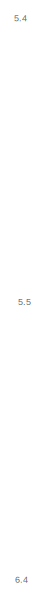
[diagram: root canvas - part 1/7, top center region]
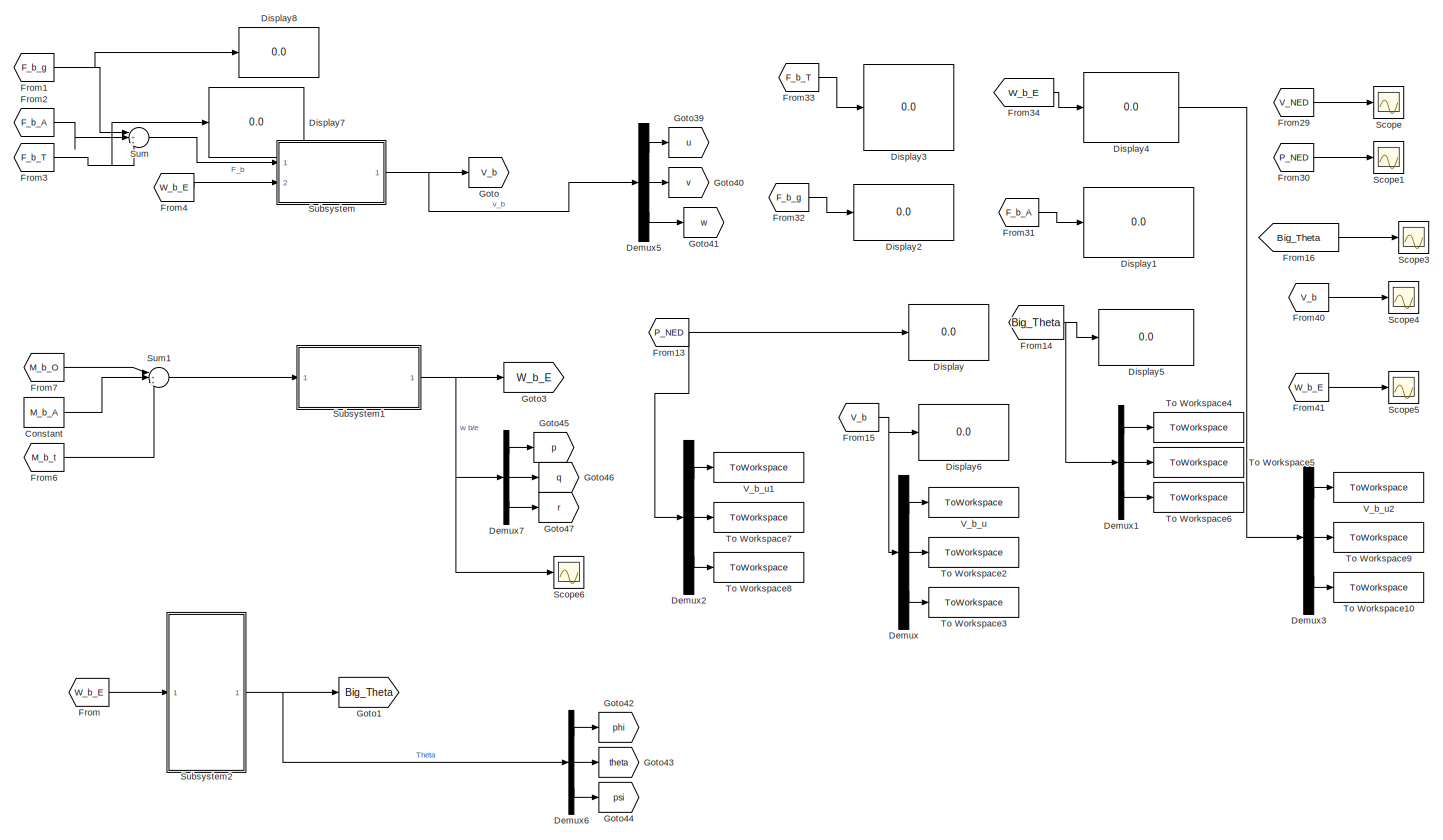
[diagram: root canvas - part 2/7, top right region]
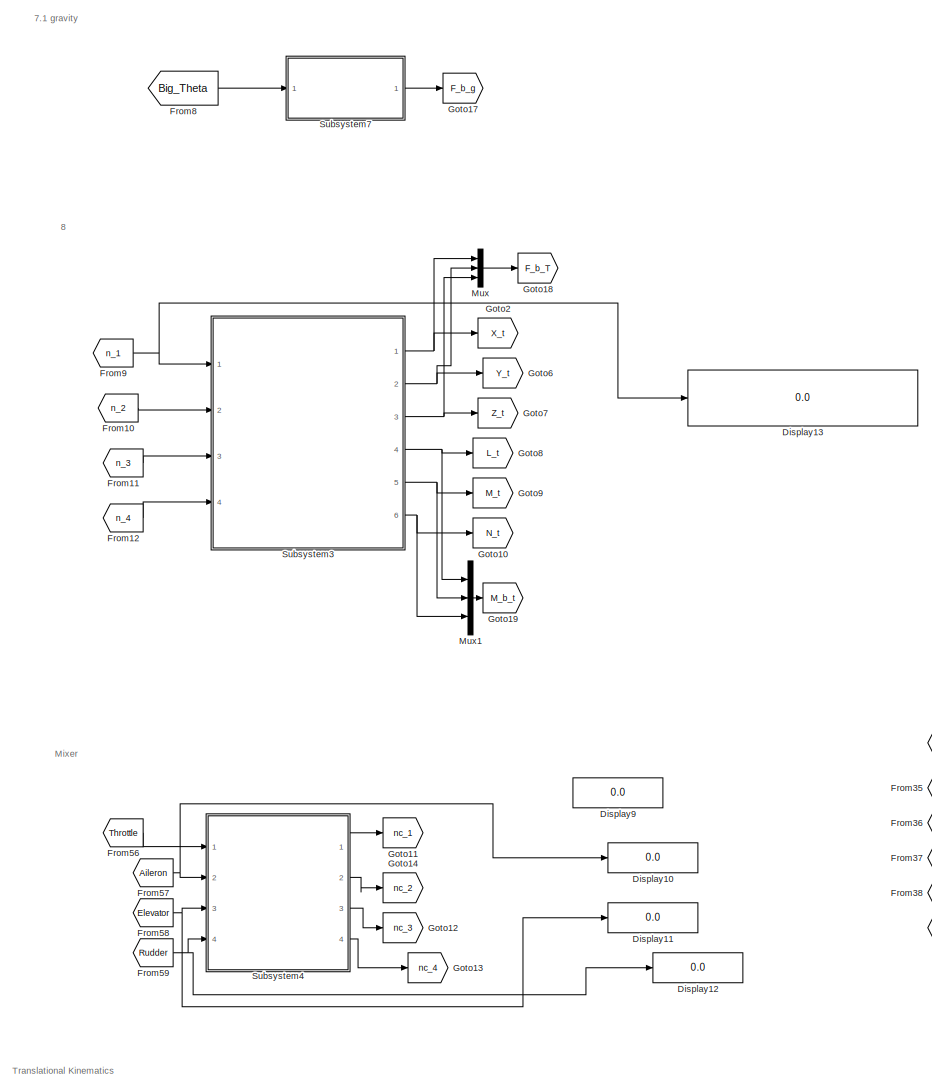
[diagram: root canvas - part 3/7, central region]
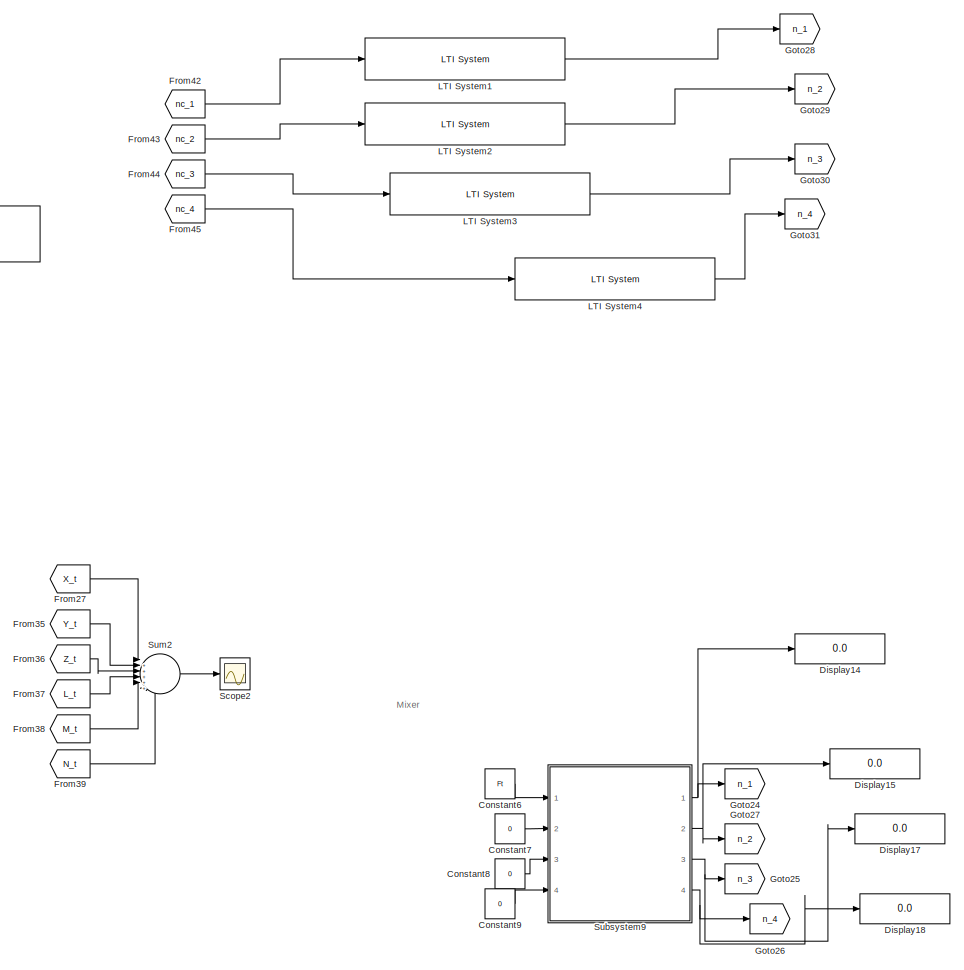
[diagram: root canvas - part 4/7, middle right region]
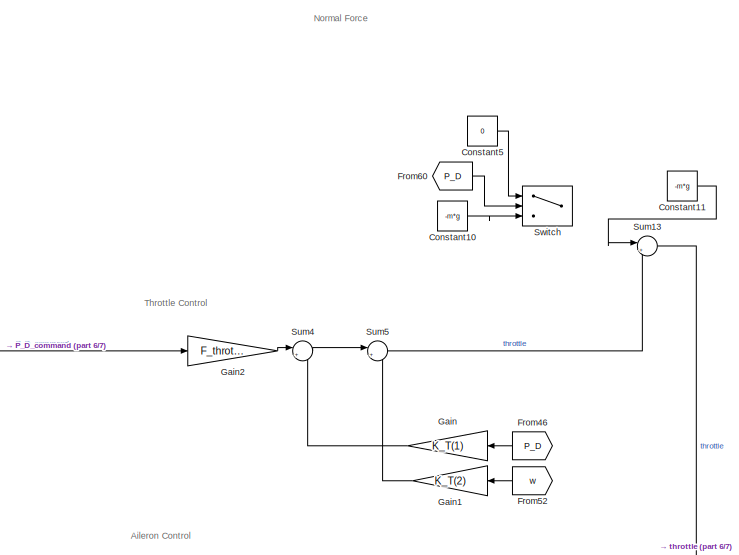
[diagram: root canvas - part 5/7, middle left region]
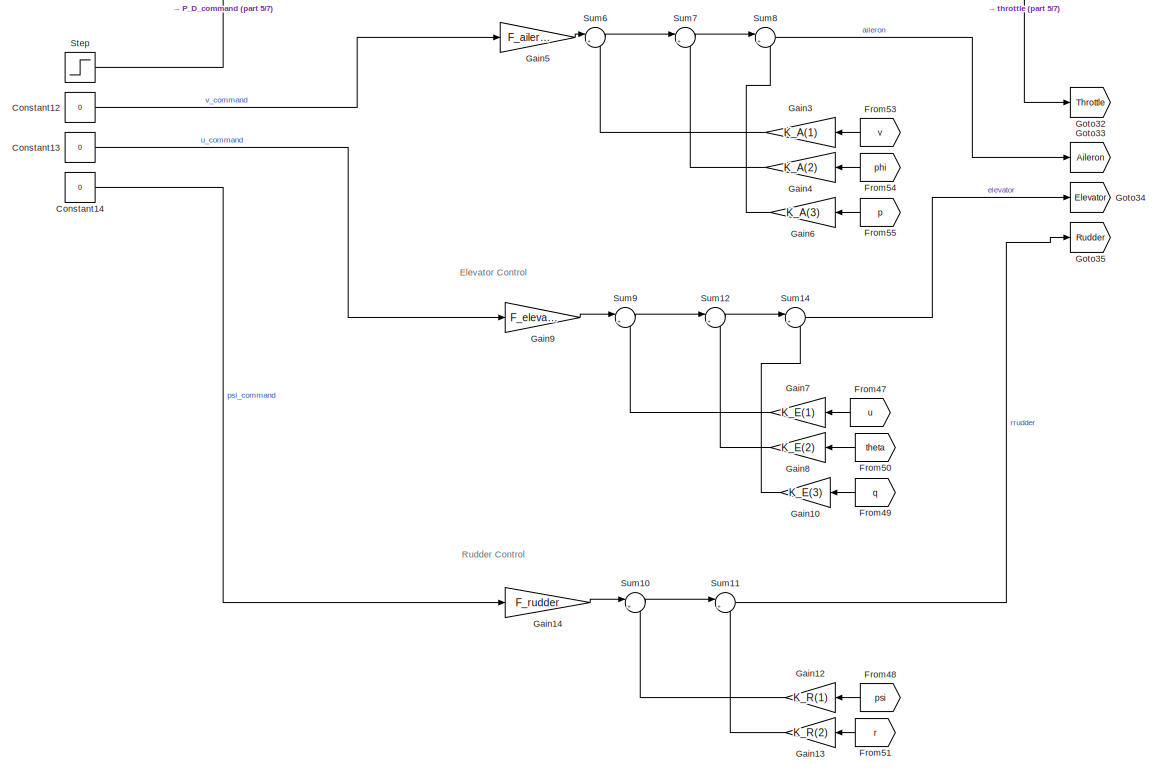
[diagram: root canvas - part 6/7, bottom left region]
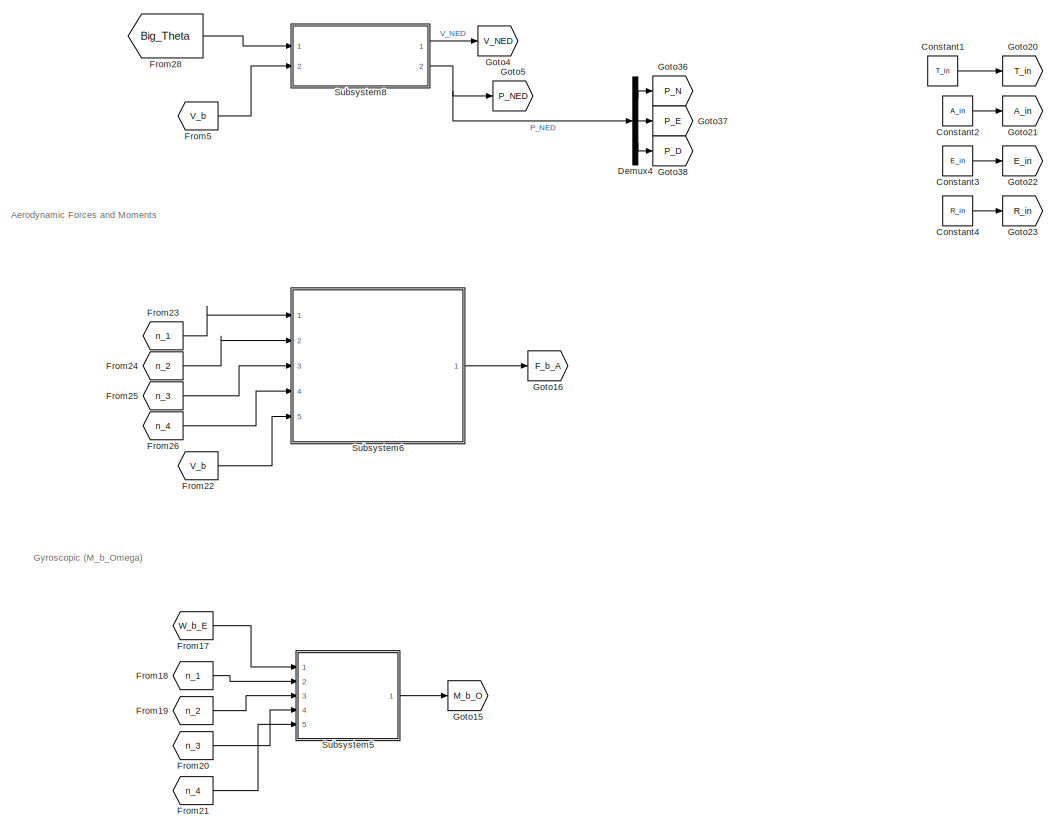
[diagram: root canvas - part 7/7, bottom center region]
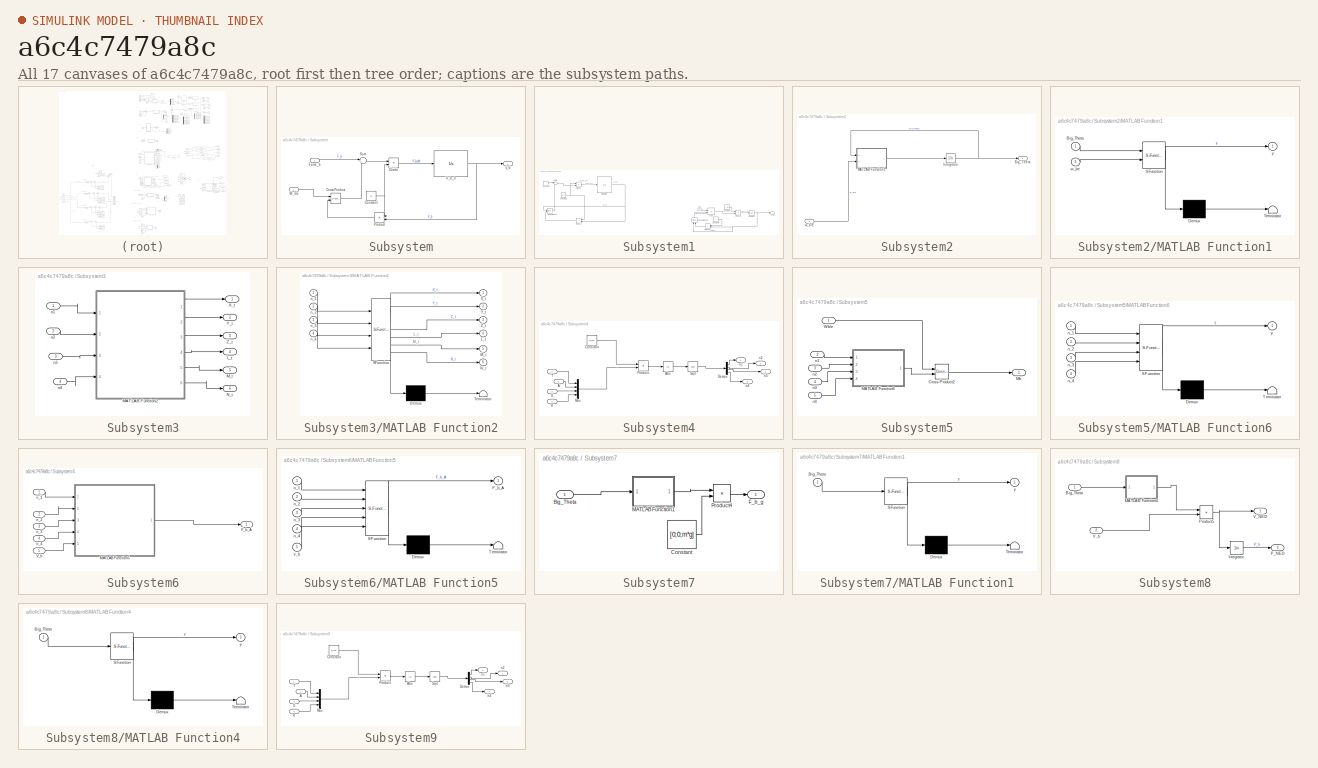
[diagram: thumbnail index - all 17 canvases of the model, root first then tree order]
MODEL slx_a6c4c7479a8c
KIND model
CONFIG AbsTol = auto
CONFIG EnableMultiTasking = off
CONFIG FixedStep = auto
CONFIG MaxStep = auto
CONFIG MinStep = auto
CONFIG RelTol = 1e-3
CONFIG SampleTimeConstraint = Unconstrained
CONFIG SolverName = VariableStepAuto
CONFIG StartTime = 0.0
CONFIG StopTime = 10
BLOCK [Constant] Constant
  Value = M_b_A
BLOCK [Constant] Constant1
  Commented = on
  Value = T_in
BLOCK [Constant] Constant10
  Commented = on
  Value = -m*g
BLOCK [Constant] Constant11
  Value = -m*g
BLOCK [Constant] Constant12
  Value = 0
BLOCK [Constant] Constant13
  Value = 0
BLOCK [Constant] Constant14
  Value = 0
BLOCK [Constant] Constant2
  Commented = on
  Value = A_in
BLOCK [Constant] Constant3
  Commented = on
  Value = E_in
BLOCK [Constant] Constant4
  Commented = on
  Value = R_in
BLOCK [Constant] Constant5
  Commented = on
  Value = 0
BLOCK [Constant] Constant6
  Commented = on
  Value = Ft
BLOCK [Constant] Constant7
  Commented = on
  Value = 0
BLOCK [Constant] Constant8
  Commented = on
  Value = 0
BLOCK [Constant] Constant9
  Commented = on
  Value = 0
BLOCK [Demux] Demux
  Commented = on
  Outputs = 3
  Ports = [1, 3]
BLOCK [Demux] Demux1
  Commented = on
  Outputs = 3
  Ports = [1, 3]
BLOCK [Demux] Demux2
  Commented = on
  Outputs = 3
  Ports = [1, 3]
BLOCK [Demux] Demux3
  Commented = on
  Outputs = 3
  Ports = [1, 3]
BLOCK [Demux] Demux4
  Outputs = 3
  Ports = [1, 3]
BLOCK [Demux] Demux5
  Outputs = 3
  Ports = [1, 3]
BLOCK [Demux] Demux6
  Outputs = 3
  Ports = [1, 3]
BLOCK [Demux] Demux7
  Outputs = 3
  Ports = [1, 3]
BLOCK [Display] Display
  Commented = on
  Decimation = 1
  Ports = [1]
BLOCK [Display] Display1
  Commented = on
  Decimation = 1
  Ports = [1]
BLOCK [Display] Display10
  Decimation = 1
  Ports = [1]
BLOCK [Display] Display11
  Decimation = 1
  Ports = [1]
BLOCK [Display] Display12
  Decimation = 1
  Ports = [1]
BLOCK [Display] Display13
  Decimation = 1
  Ports = [1]
BLOCK [Display] Display14
  Commented = on
  Decimation = 1
  Ports = [1]
BLOCK [Display] Display15
  Commented = on
  Decimation = 1
  Ports = [1]
BLOCK [Display] Display17
  Commented = on
  Decimation = 1
  Ports = [1]
BLOCK [Display] Display18
  Commented = on
  Decimation = 1
  Ports = [1]
BLOCK [Display] Display2
  Commented = on
  Decimation = 1
  Ports = [1]
BLOCK [Display] Display3
  Commented = on
  Decimation = 1
  Ports = [1]
BLOCK [Display] Display4
  Commented = on
  Decimation = 1
  Ports = [1]
BLOCK [Display] Display5
  Commented = on
  Decimation = 1
  Ports = [1]
BLOCK [Display] Display6
  Commented = on
  Decimation = 1
  Ports = [1]
BLOCK [Display] Display7
  Decimation = 1
  Ports = [1]
BLOCK [Display] Display8
  Decimation = 1
  Ports = [1]
BLOCK [Display] Display9
  Decimation = 1
  Ports = [1]
BLOCK [From] From
  GotoTag = W_b_E
BLOCK [From] From1
  GotoTag = F_b_g
BLOCK [From] From10
  GotoTag = n_2
BLOCK [From] From11
  GotoTag = n_3
BLOCK [From] From12
  GotoTag = n_4
BLOCK [From] From13
  Commented = on
  GotoTag = P_NED
BLOCK [From] From14
  Commented = on
  GotoTag = Big_Theta
BLOCK [From] From15
  Commented = on
  GotoTag = V_b
BLOCK [From] From16
  Commented = on
  GotoTag = Big_Theta
BLOCK [From] From17
  GotoTag = W_b_E
BLOCK [From] From18
  GotoTag = n_1
BLOCK [From] From19
  GotoTag = n_2
BLOCK [From] From2
  GotoTag = F_b_A
BLOCK [From] From20
  GotoTag = n_3
BLOCK [From] From21
  GotoTag = n_4
BLOCK [From] From22
  GotoTag = V_b
BLOCK [From] From23
  GotoTag = n_1
BLOCK [From] From24
  GotoTag = n_2
BLOCK [From] From25
  GotoTag = n_3
BLOCK [From] From26
  GotoTag = n_4
BLOCK [From] From27
  GotoTag = X_t
BLOCK [From] From28
  GotoTag = Big_Theta
BLOCK [From] From29
  Commented = on
  GotoTag = V_NED
BLOCK [From] From3
  GotoTag = F_b_T
BLOCK [From] From30
  Commented = on
  GotoTag = P_NED
BLOCK [From] From31
  Commented = on
  GotoTag = F_b_A
BLOCK [From] From32
  Commented = on
  GotoTag = F_b_g
BLOCK [From] From33
  Commented = on
  GotoTag = F_b_T
BLOCK [From] From34
  Commented = on
  GotoTag = W_b_E
BLOCK [From] From35
  GotoTag = Y_t
BLOCK [From] From36
  GotoTag = Z_t
BLOCK [From] From37
  GotoTag = L_t
BLOCK [From] From38
  GotoTag = M_t
BLOCK [From] From39
  GotoTag = N_t
BLOCK [From] From4
  GotoTag = W_b_E
BLOCK [From] From40
  Commented = on
  GotoTag = V_b
BLOCK [From] From41
  Commented = on
  GotoTag = W_b_E
BLOCK [From] From42
  GotoTag = nc_1
BLOCK [From] From43
  GotoTag = nc_2
BLOCK [From] From44
  GotoTag = nc_3
BLOCK [From] From45
  GotoTag = nc_4
BLOCK [From] From46
  GotoTag = P_D
  NameLocation = top
BLOCK [From] From47
  GotoTag = u
  NameLocation = top
BLOCK [From] From48
  GotoTag = psi
  NameLocation = top
BLOCK [From] From49
  GotoTag = q
  NameLocation = top
BLOCK [From] From5
  GotoTag = V_b
BLOCK [From] From50
  GotoTag = theta
  NameLocation = top
BLOCK [From] From51
  GotoTag = r
  NameLocation = top
BLOCK [From] From52
  GotoTag = w
  NameLocation = top
BLOCK [From] From53
  GotoTag = v
  NameLocation = top
BLOCK [From] From54
  GotoTag = phi
  NameLocation = top
BLOCK [From] From55
  GotoTag = p
  NameLocation = top
BLOCK [From] From56
  GotoTag = Throttle
BLOCK [From] From57
  GotoTag = Aileron
BLOCK [From] From58
  GotoTag = Elevator
BLOCK [From] From59
  GotoTag = Rudder
BLOCK [From] From6
  GotoTag = M_b_t
BLOCK [From] From60
  Commented = on
  GotoTag = P_D
BLOCK [From] From7
  GotoTag = M_b_O
BLOCK [From] From8
  GotoTag = Big_Theta
BLOCK [From] From9
  GotoTag = n_1
BLOCK [Gain] Gain
  Gain = K_T(1)
BLOCK [Gain] Gain1
  Gain = K_T(2)
BLOCK [Gain] Gain10
  Gain = K_E(3)
BLOCK [Gain] Gain12
  Gain = K_R(1)
BLOCK [Gain] Gain13
  Gain = K_R(2)
BLOCK [Gain] Gain14
  Gain = F_rudder
BLOCK [Gain] Gain2
  Gain = F_throttle
BLOCK [Gain] Gain3
  Gain = K_A(1)
BLOCK [Gain] Gain4
  Gain = K_A(2)
BLOCK [Gain] Gain5
  Gain = F_aileron
BLOCK [Gain] Gain6
  Gain = K_A(3)
BLOCK [Gain] Gain7
  Gain = K_E(1)
BLOCK [Gain] Gain8
  Gain = K_E(2)
BLOCK [Gain] Gain9
  Gain = F_elevator
BLOCK [Goto] Goto
  GotoTag = V_b
BLOCK [Goto] Goto1
  GotoTag = Big_Theta
BLOCK [Goto] Goto10
  GotoTag = N_t
BLOCK [Goto] Goto11
  GotoTag = nc_1
BLOCK [Goto] Goto12
  GotoTag = nc_3
BLOCK [Goto] Goto13
  GotoTag = nc_4
BLOCK [Goto] Goto14
  GotoTag = nc_2
BLOCK [Goto] Goto15
  GotoTag = M_b_O
BLOCK [Goto] Goto16
  GotoTag = F_b_A
BLOCK [Goto] Goto17
  GotoTag = F_b_g
BLOCK [Goto] Goto18
  GotoTag = F_b_T
BLOCK [Goto] Goto19
  GotoTag = M_b_t
BLOCK [Goto] Goto2
  GotoTag = X_t
BLOCK [Goto] Goto20
  Commented = on
  GotoTag = T_in
BLOCK [Goto] Goto21
  Commented = on
  GotoTag = A_in
BLOCK [Goto] Goto22
  Commented = on
  GotoTag = E_in
BLOCK [Goto] Goto23
  Commented = on
  GotoTag = R_in
BLOCK [Goto] Goto24
  Commented = on
  GotoTag = n_1
BLOCK [Goto] Goto25
  Commented = on
  GotoTag = n_3
BLOCK [Goto] Goto26
  Commented = on
  GotoTag = n_4
BLOCK [Goto] Goto27
  Commented = on
  GotoTag = n_2
BLOCK [Goto] Goto28
  GotoTag = n_1
BLOCK [Goto] Goto29
  GotoTag = n_2
BLOCK [Goto] Goto3
  GotoTag = W_b_E
BLOCK [Goto] Goto30
  GotoTag = n_3
BLOCK [Goto] Goto31
  GotoTag = n_4
BLOCK [Goto] Goto32
  GotoTag = Throttle
BLOCK [Goto] Goto33
  GotoTag = Aileron
BLOCK [Goto] Goto34
  GotoTag = Elevator
BLOCK [Goto] Goto35
  GotoTag = Rudder
BLOCK [Goto] Goto36
  GotoTag = P_N
BLOCK [Goto] Goto37
  GotoTag = P_E
BLOCK [Goto] Goto38
  GotoTag = P_D
BLOCK [Goto] Goto39
  GotoTag = u
BLOCK [Goto] Goto4
  GotoTag = V_NED
BLOCK [Goto] Goto40
  GotoTag = v
BLOCK [Goto] Goto41
  GotoTag = w
BLOCK [Goto] Goto42
  GotoTag = phi
BLOCK [Goto] Goto43
  GotoTag = theta
BLOCK [Goto] Goto44
  GotoTag = psi
BLOCK [Goto] Goto45
  GotoTag = p
BLOCK [Goto] Goto46
  GotoTag = q
BLOCK [Goto] Goto47
  GotoTag = r
BLOCK [Goto] Goto5
  GotoTag = P_NED
BLOCK [Goto] Goto6
  GotoTag = Y_t
BLOCK [Goto] Goto7
  GotoTag = Z_t
BLOCK [Goto] Goto8
  GotoTag = L_t
BLOCK [Goto] Goto9
  GotoTag = M_t
BLOCK [Reference] LTI System1  REF=cstblocks/LTI System
  Commented = through
  Ports = [1, 1]
  SourceBlock = cstblocks/LTI System
  SourceProductBaseCode = CT
  SourceType = LTI Block
BLOCK [Reference] LTI System2  REF=cstblocks/LTI System
  Commented = through
  Ports = [1, 1]
  SourceBlock = cstblocks/LTI System
  SourceProductBaseCode = CT
  SourceType = LTI Block
BLOCK [Reference] LTI System3  REF=cstblocks/LTI System
  Commented = through
  Ports = [1, 1]
  SourceBlock = cstblocks/LTI System
  SourceProductBaseCode = CT
  SourceType = LTI Block
BLOCK [Reference] LTI System4  REF=cstblocks/LTI System
  Commented = through
  Ports = [1, 1]
  SourceBlock = cstblocks/LTI System
  SourceProductBaseCode = CT
  SourceType = LTI Block
BLOCK [Mux] Mux
  DisplayOption = bar
  Inputs = 3
  Ports = [3, 1]
BLOCK [Mux] Mux1
  DisplayOption = bar
  Inputs = 3
  Ports = [3, 1]
BLOCK [Scope] Scope
  Commented = on
  Floating = off
  NumInputPorts = 1
  Ports = [1]
  ScopeSpecificationString = Simulink.scopes.TimeScopeBlockCfg('CurrentConfiguration', extmgr.ConfigurationSet(extmgr.Configuration('Core','General UI',true),extmgr.Configuration('Core','Source UI',true),extmgr.Configuration('Sources','WiredSimulink',true),extmgr.Configuration('Visuals','Time Domain',true,'SerializedDisplays',{struct('MinYLimReal','-49.86585','MaxYLimReal','6.65175','YLabelReal','','MinYLimMag','0.00000','Max...<+1372ch>
BLOCK [Scope] Scope1
  Commented = on
  Floating = off
  NumInputPorts = 1
  Ports = [1]
  ScopeSpecificationString = Simulink.scopes.TimeScopeBlockCfg('CurrentConfiguration', extmgr.ConfigurationSet(extmgr.Configuration('Core','General UI',true),extmgr.Configuration('Core','Source UI',true),extmgr.Configuration('Sources','WiredSimulink',true,'DataLoggingVariableName','ScopeData1'),extmgr.Configuration('Visuals','Time Domain',true,'SerializedDisplays',{struct('MinYLimReal','-0.24639','MaxYLimReal','2.15248','YLab...<+1480ch>
BLOCK [Scope] Scope2
  Floating = off
  NumInputPorts = 1
  Ports = [1]
  ScopeSpecificationString = Simulink.scopes.TimeScopeBlockCfg('CurrentConfiguration', extmgr.ConfigurationSet(extmgr.Configuration('Core','General UI',true),extmgr.Configuration('Core','Source UI',true),extmgr.Configuration('Sources','WiredSimulink',true,'DataLoggingVariableName','ScopeData1'),extmgr.Configuration('Visuals','Time Domain',true),extmgr.Configuration('Tools','Plot Navigation',true),extmgr.Configuration('Tools',...<+40ch>
BLOCK [Scope] Scope3
  Commented = on
  Floating = off
  NumInputPorts = 1
  Ports = [1]
  ScopeSpecificationString = Simulink.scopes.TimeScopeBlockCfg('CurrentConfiguration', extmgr.ConfigurationSet(extmgr.Configuration('Core','General UI',true),extmgr.Configuration('Core','Source UI',true),extmgr.Configuration('Sources','WiredSimulink',true,'DataLoggingVariableName','ScopeData2'),extmgr.Configuration('Visuals','Time Domain',true,'SerializedDisplays',{struct('MinYLimReal','-0.26014','MaxYLimReal','2.34121','YLab...<+1490ch>
BLOCK [Scope] Scope4
  Commented = on
  Floating = off
  NumInputPorts = 1
  Ports = [1]
  ScopeSpecificationString = Simulink.scopes.TimeScopeBlockCfg('CurrentConfiguration', extmgr.ConfigurationSet(extmgr.Configuration('Core','General UI',true),extmgr.Configuration('Core','Source UI',true),extmgr.Configuration('Sources','WiredSimulink',true,'DataLoggingVariableName','ScopeData3'),extmgr.Configuration('Visuals','Time Domain',true,'SerializedDisplays',{struct('MinYLimReal','-0.15994','MaxYLimReal','1.1021','YLabe...<+1519ch>
BLOCK [Scope] Scope5
  Commented = on
  Floating = off
  NumInputPorts = 1
  Ports = [1]
  ScopeSpecificationString = Simulink.scopes.TimeScopeBlockCfg('CurrentConfiguration', extmgr.ConfigurationSet(extmgr.Configuration('Core','General UI',true),extmgr.Configuration('Core','Source UI',true),extmgr.Configuration('Sources','WiredSimulink',true,'DataLoggingVariableName','ScopeData4'),extmgr.Configuration('Visuals','Time Domain',true,'SerializedDisplays',{struct('MinYLimReal','-0.02646','MaxYLimReal','0.23429','YLab...<+1512ch>
BLOCK [Scope] Scope6
  Floating = off
  NumInputPorts = 1
  Ports = [1]
  ScopeSpecificationString = Simulink.scopes.TimeScopeBlockCfg('CurrentConfiguration', extmgr.ConfigurationSet(extmgr.Configuration('Core','General UI',true),extmgr.Configuration('Core','Source UI',true),extmgr.Configuration('Sources','WiredSimulink',true,'DataLoggingVariableName','ScopeData1'),extmgr.Configuration('Visuals','Time Domain',true,'SerializedDisplays',{struct('MinYLimReal','-0.000000002','MaxYLimReal','0.00000002...<+1418ch>
BLOCK [Step] Step
  After = -1
  SampleTime = 0
  Time = 5
BLOCK [SubSystem] Subsystem
  Ports = [2, 1]
  RequestExecContextInheritance = off
BLOCK [Constant] Subsystem/Constant
  Value = m
BLOCK [Reference] Subsystem/Cross Product  REF=vrlib/Utilities/Cross Product
  Ports = [2, 1]
  SourceBlock = vrlib/Utilities/Cross Product
  SourceProductBaseCode = SL
  SourceType = Cross Product
BLOCK [Product] Subsystem/Divide
  Inputs = */
  Ports = [2, 1]
BLOCK [Inport] Subsystem/Force_b
BLOCK [Product] Subsystem/Product
  Ports = [2, 1]
BLOCK [Sum] Subsystem/Sum
  Inputs = |+-
  Ports = [2, 1]
BLOCK [Integrator] Subsystem/V_b_0
  AttributesFormatString = %<InitialCondition>
  InitialCondition = V_b_0
  Ports = [1, 1]
BLOCK [Inport] Subsystem/W_bE
  Port = 2
BLOCK [Outport] Subsystem/v_b
BLOCK [SubSystem] Subsystem1
  Ports = [1, 1]
  RequestExecContextInheritance = off
BLOCK [Sum] Subsystem1/Add1
  IconShape = rectangular
  Inputs = +-
  Ports = [2, 1]
BLOCK [Constant] Subsystem1/Constant
  Value = J_inv
BLOCK [Constant] Subsystem1/Constant1
  Commented = on
  Value = J2
BLOCK [Constant] Subsystem1/Constant2
  Value = J
BLOCK [Reference] Subsystem1/Cross Product  REF=vrlib/Utilities/Cross Product
  Commented = on
  Ports = [2, 1]
  SourceBlock = vrlib/Utilities/Cross Product
  SourceProductBaseCode = SL
  SourceType = Cross Product
BLOCK [Reference] Subsystem1/Cross Product1  REF=vrlib/Utilities/Cross Product
  NameLocation = right
  Ports = [2, 1]
  SourceBlock = vrlib/Utilities/Cross Product
  SourceProductBaseCode = SL
  SourceType = Cross Product
BLOCK [Product] Subsystem1/Divide1
  Commented = on
  Inputs = /*
  Multiplication = Matrix(*)
  Ports = [2, 1]
BLOCK [Integrator] Subsystem1/Integrator1
  AttributesFormatString = %<InitialCondition>
  InitialCondition = W_BE_0
  Ports = [1, 1]
BLOCK [Integrator] Subsystem1/Integrator2
  AttributesFormatString = %<InitialCondition>
  Commented = on
  InitialCondition = W_BE_0
  Ports = [1, 1]
BLOCK [Inport] Subsystem1/M_b
BLOCK [Product] Subsystem1/Product
  Commented = on
  Multiplication = Matrix(*)
  Ports = [2, 1]
BLOCK [Product] Subsystem1/Product1
  Multiplication = Matrix(*)
  NameLocation = top
  Ports = [2, 1]
BLOCK [Product] Subsystem1/Product2
  Multiplication = Matrix(*)
  Ports = [2, 1]
BLOCK [Reshape] Subsystem1/Reshape
  Commented = on
  OutputDimensionality = Customize
  OutputDimensions = [3,1]
  Ports = [1, 1]
BLOCK [Sum] Subsystem1/Sum2
  Commented = on
  Inputs = |+-
  Ports = [2, 1]
BLOCK [Outport] Subsystem1/w_b//E
BLOCK [SubSystem] Subsystem2
  Ports = [1, 1]
  RequestExecContextInheritance = off
BLOCK [Outport] Subsystem2/Big_Theta
BLOCK [Integrator] Subsystem2/Integrator
  InitialCondition = [0;0;0];
  Ports = [1, 1]
BLOCK [SubSystem] Subsystem2/MATLAB Function1
  ErrorFcn = Stateflow.Translate.translate
  PermitHierarchicalResolution = ExplicitOnly
  Ports = [2, 1]
  RequestExecContextInheritance = off
  SFBlockType = MATLAB Function
  TreatAsAtomicUnit = on
BLOCK [Demux] Subsystem2/MATLAB Function1/ Demux 
  Outputs = 1
  Ports = [1, 1]
BLOCK [S-Function] Subsystem2/MATLAB Function1/ SFunction 
  EnableBusSupport = on
  FunctionName = sf_sfun
  PortCounts = [2 2]
  Ports = [2, 2]
  SFcnIsStateOwnerBlock = off
  SFunctionDeploymentMode = off
  Tag = Stateflow S-Function 8
BLOCK [Terminator] Subsystem2/MATLAB Function1/ Terminator 
BLOCK [Inport] Subsystem2/MATLAB Function1/Big_Theta
BLOCK [Inport] Subsystem2/MATLAB Function1/w_be
  Port = 2
BLOCK [Outport] Subsystem2/MATLAB Function1/y
BLOCK [Inport] Subsystem2/w_b//E
BLOCK [SubSystem] Subsystem3
  Ports = [4, 6]
  RequestExecContextInheritance = off
BLOCK [Outport] Subsystem3/L_t
  Port = 4
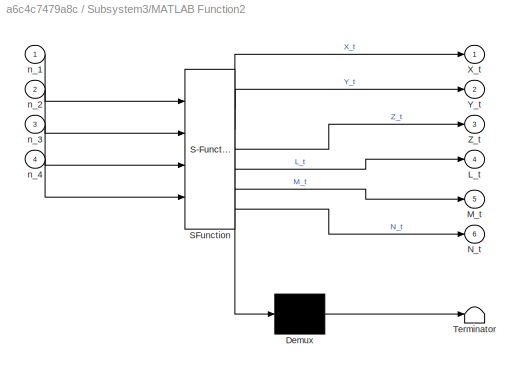
BLOCK [SubSystem] Subsystem3/MATLAB Function2
  ErrorFcn = Stateflow.Translate.translate
  PermitHierarchicalResolution = ExplicitOnly
  Ports = [4, 6]
  RequestExecContextInheritance = off
  SFBlockType = MATLAB Function
  TreatAsAtomicUnit = on
BLOCK [Demux] Subsystem3/MATLAB Function2/ Demux 
  Outputs = 1
  Ports = [1, 1]
BLOCK [S-Function] Subsystem3/MATLAB Function2/ SFunction 
  EnableBusSupport = on
  FunctionName = sf_sfun
  PortCounts = [4 7]
  Ports = [4, 7]
  SFcnIsStateOwnerBlock = off
  SFunctionDeploymentMode = off
  Tag = Stateflow S-Function 3
BLOCK [Terminator] Subsystem3/MATLAB Function2/ Terminator 
BLOCK [Outport] Subsystem3/MATLAB Function2/L_t
  Port = 4
BLOCK [Outport] Subsystem3/MATLAB Function2/M_t
  Port = 5
BLOCK [Outport] Subsystem3/MATLAB Function2/N_t
  Port = 6
BLOCK [Outport] Subsystem3/MATLAB Function2/X_t
BLOCK [Outport] Subsystem3/MATLAB Function2/Y_t
  Port = 2
BLOCK [Outport] Subsystem3/MATLAB Function2/Z_t
  Port = 3
BLOCK [Inport] Subsystem3/MATLAB Function2/n_1
BLOCK [Inport] Subsystem3/MATLAB Function2/n_2
  Port = 2
BLOCK [Inport] Subsystem3/MATLAB Function2/n_3
  Port = 3
BLOCK [Inport] Subsystem3/MATLAB Function2/n_4
  Port = 4
BLOCK [Outport] Subsystem3/M_t
  Port = 5
BLOCK [Outport] Subsystem3/N_t
  Port = 6
BLOCK [Outport] Subsystem3/X_t
  OutDataTypeStr = double
BLOCK [Outport] Subsystem3/Y_t
  OutDataTypeStr = double
  Port = 2
BLOCK [Outport] Subsystem3/Z_t
  Port = 3
BLOCK [Inport] Subsystem3/n1
BLOCK [Inport] Subsystem3/n2
  Port = 2
BLOCK [Inport] Subsystem3/n3
  Port = 3
BLOCK [Inport] Subsystem3/n4
  Port = 4
BLOCK [SubSystem] Subsystem4
  Ports = [4, 4]
  RequestExecContextInheritance = off
BLOCK [Inport] Subsystem4/A
  Port = 2
BLOCK [Abs] Subsystem4/Abs
  SaturateOnIntegerOverflow = off
BLOCK [Constant] Subsystem4/Constant
  Value = Z_inv
BLOCK [Demux] Subsystem4/Demux
  Ports = [1, 4]
BLOCK [Inport] Subsystem4/E
  Port = 3
BLOCK [Mux] Subsystem4/Mux
  DisplayOption = bar
  Ports = [4, 1]
BLOCK [Product] Subsystem4/Product
  Multiplication = Matrix(*)
  Ports = [2, 1]
BLOCK [Inport] Subsystem4/R
  Port = 4
BLOCK [Sqrt] Subsystem4/Sqrt
BLOCK [Inport] Subsystem4/T
BLOCK [Outport] Subsystem4/n1
BLOCK [Outport] Subsystem4/n2
  Port = 2
BLOCK [Outport] Subsystem4/n3
  Port = 3
BLOCK [Outport] Subsystem4/n4
  Port = 4
BLOCK [SubSystem] Subsystem5
  Ports = [5, 1]
  RequestExecContextInheritance = off
BLOCK [Reference] Subsystem5/Cross Product2  REF=vrlib/Utilities/Cross Product
  Ports = [2, 1]
  SourceBlock = vrlib/Utilities/Cross Product
  SourceProductBaseCode = SL
  SourceType = Cross Product
BLOCK [SubSystem] Subsystem5/MATLAB Function6
  ErrorFcn = Stateflow.Translate.translate
  PermitHierarchicalResolution = ExplicitOnly
  Ports = [4, 1]
  RequestExecContextInheritance = off
  SFBlockType = MATLAB Function
  TreatAsAtomicUnit = on
BLOCK [Demux] Subsystem5/MATLAB Function6/ Demux 
  Outputs = 1
  Ports = [1, 1]
BLOCK [S-Function] Subsystem5/MATLAB Function6/ SFunction 
  EnableBusSupport = on
  FunctionName = sf_sfun
  PortCounts = [4 2]
  Ports = [4, 2]
  SFcnIsStateOwnerBlock = off
  SFunctionDeploymentMode = off
  Tag = Stateflow S-Function 7
BLOCK [Terminator] Subsystem5/MATLAB Function6/ Terminator 
BLOCK [Inport] Subsystem5/MATLAB Function6/n_1
BLOCK [Inport] Subsystem5/MATLAB Function6/n_2
  Port = 2
BLOCK [Inport] Subsystem5/MATLAB Function6/n_3
  Port = 3
BLOCK [Inport] Subsystem5/MATLAB Function6/n_4
  Port = 4
BLOCK [Outport] Subsystem5/MATLAB Function6/y
BLOCK [Outport] Subsystem5/Mb
BLOCK [Inport] Subsystem5/Wb//e
BLOCK [Inport] Subsystem5/n1
  Port = 2
BLOCK [Inport] Subsystem5/n2
  Port = 3
BLOCK [Inport] Subsystem5/n3
  Port = 4
BLOCK [Inport] Subsystem5/n4
  Port = 5
BLOCK [SubSystem] Subsystem6
  Ports = [5, 1]
  RequestExecContextInheritance = off
BLOCK [Outport] Subsystem6/F_b_A
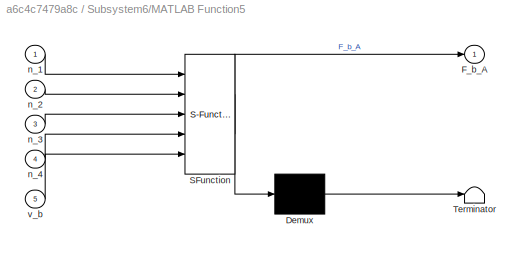
BLOCK [SubSystem] Subsystem6/MATLAB Function5
  ErrorFcn = Stateflow.Translate.translate
  PermitHierarchicalResolution = ExplicitOnly
  Ports = [5, 1]
  RequestExecContextInheritance = off
  SFBlockType = MATLAB Function
  TreatAsAtomicUnit = on
BLOCK [Demux] Subsystem6/MATLAB Function5/ Demux 
  Outputs = 1
  Ports = [1, 1]
BLOCK [S-Function] Subsystem6/MATLAB Function5/ SFunction 
  EnableBusSupport = on
  FunctionName = sf_sfun
  PortCounts = [5 2]
  Ports = [5, 2]
  SFcnIsStateOwnerBlock = off
  SFunctionDeploymentMode = off
  Tag = Stateflow S-Function 6
BLOCK [Terminator] Subsystem6/MATLAB Function5/ Terminator 
BLOCK [Outport] Subsystem6/MATLAB Function5/F_b_A
BLOCK [Inport] Subsystem6/MATLAB Function5/n_1
BLOCK [Inport] Subsystem6/MATLAB Function5/n_2
  Port = 2
BLOCK [Inport] Subsystem6/MATLAB Function5/n_3
  Port = 3
BLOCK [Inport] Subsystem6/MATLAB Function5/n_4
  Port = 4
BLOCK [Inport] Subsystem6/MATLAB Function5/v_b
  Port = 5
BLOCK [Inport] Subsystem6/V_b
  Port = 5
BLOCK [Inport] Subsystem6/n_1
BLOCK [Inport] Subsystem6/n_2
  Port = 2
BLOCK [Inport] Subsystem6/n_3
  Port = 3
BLOCK [Inport] Subsystem6/n_4
  Port = 4
BLOCK [SubSystem] Subsystem7
  Ports = [1, 1]
  RequestExecContextInheritance = off
BLOCK [Inport] Subsystem7/Big_Theta
BLOCK [Constant] Subsystem7/Constant
  Value = [0;0;m*g]
BLOCK [Outport] Subsystem7/F_b_g
BLOCK [SubSystem] Subsystem7/MATLAB Function1
  ErrorFcn = Stateflow.Translate.translate
  PermitHierarchicalResolution = ExplicitOnly
  Ports = [1, 1]
  RequestExecContextInheritance = off
  SFBlockType = MATLAB Function
  TreatAsAtomicUnit = on
BLOCK [Demux] Subsystem7/MATLAB Function1/ Demux 
  Outputs = 1
  Ports = [1, 1]
BLOCK [S-Function] Subsystem7/MATLAB Function1/ SFunction 
  EnableBusSupport = on
  FunctionName = sf_sfun
  PortCounts = [1 2]
  Ports = [1, 2]
  SFcnIsStateOwnerBlock = off
  SFunctionDeploymentMode = off
  Tag = Stateflow S-Function 1
BLOCK [Terminator] Subsystem7/MATLAB Function1/ Terminator 
BLOCK [Inport] Subsystem7/MATLAB Function1/Big_Theta
BLOCK [Outport] Subsystem7/MATLAB Function1/y
BLOCK [Product] Subsystem7/Product4
  Multiplication = Matrix(*)
  Ports = [2, 1]
BLOCK [SubSystem] Subsystem8
  Ports = [2, 2]
  RequestExecContextInheritance = off
BLOCK [Inport] Subsystem8/Big_Theta
BLOCK [Integrator] Subsystem8/Integrator
  Ports = [1, 1]
BLOCK [SubSystem] Subsystem8/MATLAB Function4
  ErrorFcn = Stateflow.Translate.translate
  PermitHierarchicalResolution = ExplicitOnly
  Ports = [1, 1]
  RequestExecContextInheritance = off
  SFBlockType = MATLAB Function
  TreatAsAtomicUnit = on
BLOCK [Demux] Subsystem8/MATLAB Function4/ Demux 
  Outputs = 1
  Ports = [1, 1]
BLOCK [S-Function] Subsystem8/MATLAB Function4/ SFunction 
  EnableBusSupport = on
  FunctionName = sf_sfun
  PortCounts = [1 2]
  Ports = [1, 2]
  SFcnIsStateOwnerBlock = off
  SFunctionDeploymentMode = off
  Tag = Stateflow S-Function 5
BLOCK [Terminator] Subsystem8/MATLAB Function4/ Terminator 
BLOCK [Inport] Subsystem8/MATLAB Function4/Big_Theta
BLOCK [Outport] Subsystem8/MATLAB Function4/y
BLOCK [Outport] Subsystem8/P_NED
  Port = 2
BLOCK [Product] Subsystem8/Product5
  Multiplication = Matrix(*)
  Ports = [2, 1]
BLOCK [Outport] Subsystem8/V_NED
BLOCK [Inport] Subsystem8/V_b
  Port = 2
BLOCK [SubSystem] Subsystem9
  Commented = on
  Ports = [4, 4]
  RequestExecContextInheritance = off
BLOCK [Inport] Subsystem9/A
  Port = 2
BLOCK [Abs] Subsystem9/Abs
  SaturateOnIntegerOverflow = off
BLOCK [Constant] Subsystem9/Constant
  Value = Z_inv
BLOCK [Demux] Subsystem9/Demux
  Ports = [1, 4]
BLOCK [Inport] Subsystem9/E
  Port = 3
BLOCK [Mux] Subsystem9/Mux
  DisplayOption = bar
  Ports = [4, 1]
BLOCK [Product] Subsystem9/Product
  Multiplication = Matrix(*)
  Ports = [2, 1]
BLOCK [Inport] Subsystem9/R
  Port = 4
BLOCK [Sqrt] Subsystem9/Sqrt
BLOCK [Inport] Subsystem9/T
BLOCK [Outport] Subsystem9/n1
BLOCK [Outport] Subsystem9/n2
  Port = 2
BLOCK [Outport] Subsystem9/n3
  Port = 3
BLOCK [Outport] Subsystem9/n4
  Port = 4
BLOCK [Sum] Sum
  Inputs = |+++
  Ports = [3, 1]
BLOCK [Sum] Sum1
  Inputs = |+++
  Ports = [3, 1]
BLOCK [Sum] Sum10
  Inputs = |+-
  Ports = [2, 1]
BLOCK [Sum] Sum11
  Inputs = |+-
  Ports = [2, 1]
BLOCK [Sum] Sum12
  Inputs = |+-
  Ports = [2, 1]
BLOCK [Sum] Sum13
  Inputs = |+-
  Ports = [2, 1]
BLOCK [Sum] Sum14
  Inputs = |+-
  Ports = [2, 1]
BLOCK [Sum] Sum2
  Inputs = |++++++
  Ports = [6, 1]
BLOCK [Sum] Sum4
  Inputs = |+-
  Ports = [2, 1]
BLOCK [Sum] Sum5
  Inputs = |+-
  Ports = [2, 1]
BLOCK [Sum] Sum6
  Inputs = |+-
  Ports = [2, 1]
BLOCK [Sum] Sum7
  Inputs = |+-
  Ports = [2, 1]
BLOCK [Sum] Sum8
  Inputs = |+-
  Ports = [2, 1]
BLOCK [Sum] Sum9
  Inputs = |+-
  Ports = [2, 1]
BLOCK [Switch] Switch
  Commented = on
  Criteria = u2 > Threshold
  InputSameDT = off
  SaturateOnIntegerOverflow = off
BLOCK [ToWorkspace] To Workspace10
  Commented = on
  FixptAsFi = on
  MaxDataPoints = inf
  Ports = [1]
  SampleTime = 0.01
  SaveFormat = Timeseries
  VariableName = NLw_r
BLOCK [ToWorkspace] To Workspace2
  Commented = on
  FixptAsFi = on
  MaxDataPoints = inf
  Ports = [1]
  SampleTime = 0.01
  SaveFormat = Timeseries
  VariableName = NLV_b_v
BLOCK [ToWorkspace] To Workspace3
  Commented = on
  FixptAsFi = on
  MaxDataPoints = inf
  Ports = [1]
  SampleTime = 0.01
  SaveFormat = Timeseries
  VariableName = NLV_b_w
BLOCK [ToWorkspace] To Workspace4
  Commented = on
  FixptAsFi = on
  MaxDataPoints = inf
  Ports = [1]
  SampleTime = 0.01
  SaveFormat = Timeseries
  VariableName = NL_phi
BLOCK [ToWorkspace] To Workspace5
  Commented = on
  FixptAsFi = on
  MaxDataPoints = inf
  Ports = [1]
  SampleTime = 0.01
  SaveFormat = Timeseries
  VariableName = NL_theta
BLOCK [ToWorkspace] To Workspace6
  Commented = on
  FixptAsFi = on
  MaxDataPoints = inf
  Ports = [1]
  SampleTime = 0.01
  SaveFormat = Timeseries
  VariableName = NL_psi
BLOCK [ToWorkspace] To Workspace7
  Commented = on
  FixptAsFi = on
  MaxDataPoints = inf
  Ports = [1]
  SampleTime = 0.01
  SaveFormat = Timeseries
  VariableName = NLP_E
BLOCK [ToWorkspace] To Workspace8
  Commented = on
  FixptAsFi = on
  MaxDataPoints = inf
  Ports = [1]
  SampleTime = 0.01
  SaveFormat = Timeseries
  VariableName = NLP_D
BLOCK [ToWorkspace] To Workspace9
  Commented = on
  FixptAsFi = on
  MaxDataPoints = inf
  Ports = [1]
  SampleTime = 0.01
  SaveFormat = Timeseries
  VariableName = NLw_q
BLOCK [ToWorkspace] V_b_u
  Commented = on
  FixptAsFi = on
  MaxDataPoints = inf
  Ports = [1]
  SampleTime = 0.01
  SaveFormat = Timeseries
  VariableName = NLV_b_u
BLOCK [ToWorkspace] V_b_u1
  Commented = on
  FixptAsFi = on
  MaxDataPoints = inf
  Ports = [1]
  SampleTime = 0.01
  SaveFormat = Timeseries
  VariableName = NLP_N
BLOCK [ToWorkspace] V_b_u2
  Commented = on
  FixptAsFi = on
  MaxDataPoints = inf
  Ports = [1]
  SampleTime = 0.01
  SaveFormat = Timeseries
  VariableName = NLw_p
ANNOTATION (root): 5.4
ANNOTATION (root): 5.5
ANNOTATION (root): 6.4
ANNOTATION (root): 7.1 gravity
ANNOTATION (root): 8
ANNOTATION (root): Aerodynamic Forces and Moments
ANNOTATION (root): Aileron Control
ANNOTATION (root): Elevator Control
ANNOTATION (root): Gyroscopic (M_b_Omega)
ANNOTATION (root): Mixer
ANNOTATION (root): Normal Force
ANNOTATION (root): Rudder Control
ANNOTATION (root): Throttle Control
ANNOTATION (root): Translational Kinematics
ANNOTATION Subsystem1: w_bE
ANNOTATION Subsystem1: w_bE_dot
LINE Constant10:1 -> Switch:3
LINE Constant11:1 -> Sum13:1
LINE Constant12:1 -> Gain5:1
LINE Constant13:1 -> Gain9:1
LINE Constant14:1 -> Gain14:1
LINE Constant1:1 -> Goto20:1
LINE Constant2:1 -> Goto21:1
LINE Constant3:1 -> Goto22:1
LINE Constant4:1 -> Goto23:1
LINE Constant5:1 -> Switch:1
LINE Constant6:1 -> Subsystem9:1
LINE Constant7:1 -> Subsystem9:2
LINE Constant8:1 -> Subsystem9:3
LINE Constant9:1 -> Subsystem9:4
LINE Constant:1 -> Sum1:2
LINE Demux1:1 -> To Workspace4:1
LINE Demux1:2 -> To Workspace5:1
LINE Demux1:3 -> To Workspace6:1
LINE Demux2:1 -> V_b_u1:1
LINE Demux2:2 -> To Workspace7:1
LINE Demux2:3 -> To Workspace8:1
LINE Demux3:1 -> V_b_u2:1
LINE Demux3:2 -> To Workspace9:1
LINE Demux3:3 -> To Workspace10:1
LINE Demux4:1 -> Goto36:1
LINE Demux4:2 -> Goto37:1
LINE Demux4:3 -> Goto38:1
LINE Demux5:1 -> Goto39:1
LINE Demux5:2 -> Goto40:1
LINE Demux5:3 -> Goto41:1
LINE Demux6:1 -> Goto42:1
LINE Demux6:2 -> Goto43:1
LINE Demux6:3 -> Goto44:1
LINE Demux7:1 -> Goto45:1
LINE Demux7:2 -> Goto46:1
LINE Demux7:3 -> Goto47:1
LINE Demux:1 -> V_b_u:1
LINE Demux:2 -> To Workspace2:1
LINE Demux:3 -> To Workspace3:1
LINE From10:1 -> Subsystem3:2
LINE From11:1 -> Subsystem3:3
LINE From12:1 -> Subsystem3:4
NET From13:1 -> Demux2:1, Display:1
NET From14:1 -> Demux1:1, Display5:1
NET From15:1 -> Demux:1, Display6:1
LINE From16:1 -> Scope3:1
LINE From17:1 -> Subsystem5:1
LINE From18:1 -> Subsystem5:2
LINE From19:1 -> Subsystem5:3
NET From1:1 -> Display8:1, Sum:1
LINE From20:1 -> Subsystem5:4
LINE From21:1 -> Subsystem5:5
LINE From22:1 -> Subsystem6:5
LINE From23:1 -> Subsystem6:1
LINE From24:1 -> Subsystem6:2
LINE From25:1 -> Subsystem6:3
LINE From26:1 -> Subsystem6:4
LINE From27:1 -> Sum2:1
LINE From28:1 -> Subsystem8:1
LINE From29:1 -> Scope:1
LINE From2:1 -> Sum:2
LINE From30:1 -> Scope1:1
LINE From31:1 -> Display1:1
LINE From32:1 -> Display2:1
LINE From33:1 -> Display3:1
NET From34:1 -> Demux3:1, Display4:1
LINE From35:1 -> Sum2:2
LINE From36:1 -> Sum2:3
LINE From37:1 -> Sum2:4
LINE From38:1 -> Sum2:5
LINE From39:1 -> Sum2:6
NET From3:1 -> Display7:1, Sum:3
LINE From40:1 -> Scope4:1
LINE From41:1 -> Scope5:1
LINE From42:1 -> LTI System1:1
LINE From43:1 -> LTI System2:1
LINE From44:1 -> LTI System3:1
LINE From45:1 -> LTI System4:1
LINE From46:1 -> Gain:1
LINE From47:1 -> Gain7:1
LINE From48:1 -> Gain12:1
LINE From49:1 -> Gain10:1
LINE From4:1 -> Subsystem:2
LINE From50:1 -> Gain8:1
LINE From51:1 -> Gain13:1
LINE From52:1 -> Gain1:1
LINE From53:1 -> Gain3:1
LINE From54:1 -> Gain4:1
LINE From55:1 -> Gain6:1
LINE From56:1 -> Subsystem4:1
NET From57:1 -> Display10:1, Subsystem4:2
NET From58:1 -> Display11:1, Subsystem4:3
NET From59:1 -> Display12:1, Subsystem4:4
LINE From5:1 -> Subsystem8:2
LINE From60:1 -> Switch:2
LINE From6:1 -> Sum1:3
LINE From7:1 -> Sum1:1
LINE From8:1 -> Subsystem7:1
NET From9:1 -> Display13:1, Subsystem3:1
LINE From:1 -> Subsystem2:1
LINE Gain10:1 -> Sum14:2
LINE Gain12:1 -> Sum10:2
LINE Gain13:1 -> Sum11:2
LINE Gain14:1 -> Sum10:1
LINE Gain1:1 -> Sum5:2
LINE Gain2:1 -> Sum4:1
LINE Gain3:1 -> Sum6:2
LINE Gain4:1 -> Sum7:2
LINE Gain5:1 -> Sum6:1
LINE Gain6:1 -> Sum8:2
LINE Gain7:1 -> Sum9:2
LINE Gain8:1 -> Sum12:2
LINE Gain9:1 -> Sum9:1
LINE Gain:1 -> Sum4:2
LINE LTI System1:1 -> Goto28:1
LINE LTI System2:1 -> Goto29:1
LINE LTI System3:1 -> Goto30:1
LINE LTI System4:1 -> Goto31:1
LINE Mux1:1 -> Goto19:1
LINE Mux:1 -> Goto18:1
LINE Step:1 -> Gain2:1
NET Subsystem/Constant:1 -> Subsystem/Divide:2, Subsystem/Product:1
LINE Subsystem/Cross Product:1 -> Subsystem/Sum:2
LINE Subsystem/Divide:1 -> Subsystem/V_b_0:1
LINE Subsystem/Force_b:1 -> Subsystem/Sum:1
LINE Subsystem/Product:1 -> Subsystem/Cross Product:2
LINE Subsystem/Sum:1 -> Subsystem/Divide:1
NET Subsystem/V_b_0:1 -> Subsystem/Product:2, Subsystem/v_b:1
LINE Subsystem/W_bE:1 -> Subsystem/Cross Product:1
LINE Subsystem1/Add1:1 -> Subsystem1/Product2:2
NET Subsystem1/Constant1:1 -> Subsystem1/Divide1:1, Subsystem1/Product:1
LINE Subsystem1/Constant2:1 -> Subsystem1/Product1:1
LINE Subsystem1/Constant:1 -> Subsystem1/Product2:1
LINE Subsystem1/Cross Product1:1 -> Subsystem1/Add1:2
LINE Subsystem1/Cross Product:1 -> Subsystem1/Sum2:2
LINE Subsystem1/Divide1:1 -> Subsystem1/Integrator2:1
NET Subsystem1/Integrator1:1 -> Subsystem1/Cross Product1:1, Subsystem1/Product1:2, Subsystem1/w_b//E:1
NET Subsystem1/Integrator2:1 -> Subsystem1/Cross Product:1, Subsystem1/Product:2
LINE Subsystem1/M_b:1 -> Subsystem1/Add1:1
LINE Subsystem1/Product1:1 -> Subsystem1/Cross Product1:2
LINE Subsystem1/Product2:1 -> Subsystem1/Integrator1:1
LINE Subsystem1/Product:1 -> Subsystem1/Cross Product:2
LINE Subsystem1/Reshape:1 -> Subsystem1/Sum2:1
LINE Subsystem1/Sum2:1 -> Subsystem1/Divide1:2
NET Subsystem1:1 -> Demux7:1, Goto3:1, Scope6:1
NET Subsystem2/Integrator:1 -> Subsystem2/Big_Theta:1, Subsystem2/MATLAB Function1:1
LINE Subsystem2/MATLAB Function1:1 -> Subsystem2/Integrator:1
LINE Subsystem2/w_b//E:1 -> Subsystem2/MATLAB Function1:2
NET Subsystem2:1 -> Demux6:1, Goto1:1
LINE Subsystem3/MATLAB Function2:1 -> Subsystem3/X_t:1
LINE Subsystem3/MATLAB Function2:2 -> Subsystem3/Y_t:1
LINE Subsystem3/MATLAB Function2:3 -> Subsystem3/Z_t:1
LINE Subsystem3/MATLAB Function2:4 -> Subsystem3/L_t:1
LINE Subsystem3/MATLAB Function2:5 -> Subsystem3/M_t:1
LINE Subsystem3/MATLAB Function2:6 -> Subsystem3/N_t:1
LINE Subsystem3/n1:1 -> Subsystem3/MATLAB Function2:1
LINE Subsystem3/n2:1 -> Subsystem3/MATLAB Function2:2
LINE Subsystem3/n3:1 -> Subsystem3/MATLAB Function2:3
LINE Subsystem3/n4:1 -> Subsystem3/MATLAB Function2:4
NET Subsystem3:1 -> Goto2:1, Mux:1
NET Subsystem3:2 -> Goto6:1, Mux:2
NET Subsystem3:3 -> Goto7:1, Mux:3
NET Subsystem3:4 -> Goto8:1, Mux1:1
NET Subsystem3:5 -> Goto9:1, Mux1:2
NET Subsystem3:6 -> Goto10:1, Mux1:3
LINE Subsystem4/A:1 -> Subsystem4/Mux:2
LINE Subsystem4/Abs:1 -> Subsystem4/Sqrt:1
LINE Subsystem4/Constant:1 -> Subsystem4/Product:1
LINE Subsystem4/Demux:1 -> Subsystem4/n1:1
LINE Subsystem4/Demux:2 -> Subsystem4/n2:1
LINE Subsystem4/Demux:3 -> Subsystem4/n3:1
LINE Subsystem4/Demux:4 -> Subsystem4/n4:1
LINE Subsystem4/E:1 -> Subsystem4/Mux:3
LINE Subsystem4/Mux:1 -> Subsystem4/Product:2
LINE Subsystem4/Product:1 -> Subsystem4/Abs:1
LINE Subsystem4/R:1 -> Subsystem4/Mux:4
LINE Subsystem4/Sqrt:1 -> Subsystem4/Demux:1
LINE Subsystem4/T:1 -> Subsystem4/Mux:1
LINE Subsystem4:1 -> Goto11:1
LINE Subsystem4:2 -> Goto14:1
LINE Subsystem4:3 -> Goto12:1
LINE Subsystem4:4 -> Goto13:1
LINE Subsystem5/Cross Product2:1 -> Subsystem5/Mb:1
LINE Subsystem5/MATLAB Function6:1 -> Subsystem5/Cross Product2:2
LINE Subsystem5/Wb//e:1 -> Subsystem5/Cross Product2:1
LINE Subsystem5/n1:1 -> Subsystem5/MATLAB Function6:1
LINE Subsystem5/n2:1 -> Subsystem5/MATLAB Function6:2
LINE Subsystem5/n3:1 -> Subsystem5/MATLAB Function6:3
LINE Subsystem5/n4:1 -> Subsystem5/MATLAB Function6:4
LINE Subsystem5:1 -> Goto15:1
LINE Subsystem6/MATLAB Function5:1 -> Subsystem6/F_b_A:1
LINE Subsystem6/V_b:1 -> Subsystem6/MATLAB Function5:5
LINE Subsystem6/n_1:1 -> Subsystem6/MATLAB Function5:1
LINE Subsystem6/n_2:1 -> Subsystem6/MATLAB Function5:2
LINE Subsystem6/n_3:1 -> Subsystem6/MATLAB Function5:3
LINE Subsystem6/n_4:1 -> Subsystem6/MATLAB Function5:4
LINE Subsystem6:1 -> Goto16:1
LINE Subsystem7/Big_Theta:1 -> Subsystem7/MATLAB Function1:1
LINE Subsystem7/Constant:1 -> Subsystem7/Product4:2
LINE Subsystem7/MATLAB Function1:1 -> Subsystem7/Product4:1
LINE Subsystem7/Product4:1 -> Subsystem7/F_b_g:1
LINE Subsystem7:1 -> Goto17:1
LINE Subsystem8/Big_Theta:1 -> Subsystem8/MATLAB Function4:1
LINE Subsystem8/Integrator:1 -> Subsystem8/P_NED:1
LINE Subsystem8/MATLAB Function4:1 -> Subsystem8/Product5:1
NET Subsystem8/Product5:1 -> Subsystem8/Integrator:1, Subsystem8/V_NED:1
LINE Subsystem8/V_b:1 -> Subsystem8/Product5:2
LINE Subsystem8:1 -> Goto4:1
NET Subsystem8:2 -> Demux4:1, Goto5:1
LINE Subsystem9/A:1 -> Subsystem9/Mux:2
LINE Subsystem9/Abs:1 -> Subsystem9/Sqrt:1
LINE Subsystem9/Constant:1 -> Subsystem9/Product:1
LINE Subsystem9/Demux:1 -> Subsystem9/n1:1
LINE Subsystem9/Demux:2 -> Subsystem9/n2:1
LINE Subsystem9/Demux:3 -> Subsystem9/n3:1
LINE Subsystem9/Demux:4 -> Subsystem9/n4:1
LINE Subsystem9/E:1 -> Subsystem9/Mux:3
LINE Subsystem9/Mux:1 -> Subsystem9/Product:2
LINE Subsystem9/Product:1 -> Subsystem9/Abs:1
LINE Subsystem9/R:1 -> Subsystem9/Mux:4
LINE Subsystem9/Sqrt:1 -> Subsystem9/Demux:1
LINE Subsystem9/T:1 -> Subsystem9/Mux:1
NET Subsystem9:1 -> Display14:1, Goto24:1
NET Subsystem9:2 -> Display15:1, Goto27:1
NET Subsystem9:3 -> Display17:1, Goto25:1
NET Subsystem9:4 -> Display18:1, Goto26:1
NET Subsystem:1 -> Demux5:1, Goto:1
LINE Sum10:1 -> Sum11:1
LINE Sum11:1 -> Goto35:1
LINE Sum12:1 -> Sum14:1
LINE Sum13:1 -> Goto32:1
LINE Sum14:1 -> Goto34:1
LINE Sum1:1 -> Subsystem1:1
LINE Sum2:1 -> Scope2:1
LINE Sum4:1 -> Sum5:1
LINE Sum5:1 -> Sum13:2
LINE Sum6:1 -> Sum7:1
LINE Sum7:1 -> Sum8:1
LINE Sum8:1 -> Goto33:1
LINE Sum9:1 -> Sum12:1
LINE Sum:1 -> Subsystem:1
note: NET lines group one-source signal fan-out (src -> all destinations, sorted); 1:1 wires keep LINE
CHART Subsystem7/MATLAB Function1 states=1 transitions=1
  STATE_LABEL 'eML_blk_kernel()'
  STATE_LABEL 'SCRIPT:\nfunction y = fcn(Big_Theta)\nphi = Big_Theta(1);\ntheta = Big_Theta(2);\npsi = Big_Theta(3);\nR_phi = [1,0,0;0 cos(phi) sin(phi); 0 -sin(phi) cos(phi)];\nR_theta = [cos(theta), 0 -sin(theta); 0 1 0; sin(theta) 0 cos(theta)];\nR_psi = [cos(psi) sin(psi) 0; -sin(psi) cos(psi) 0; 0 0 1];\nu = R_phi*R_theta*R_psi;\ny = u;\n'
CHART Subsystem3/MATLAB Function2 states=1 transitions=1
  STATE_LABEL 'eML_blk_kernel()'
  STATE_LABEL 'SCRIPT:\nfunction [X_t, Y_t, Z_t, L_t, M_t, N_t] = fcn(n_1,n_2,n_3,n_4)\na = 2.0171e-06;\nb = 6.7929e-08;\nc = 6.7929e-08;\nd = 1.0309e-08;\n\nX_t = 0;\nY_t = 0;\nZ_t = -a*(n_1^2 + n_2^2 + n_3^2 + n_4^2);\nL_t = b*(n_1^2 - n_2^2 - n_3^2 + n_4^2);\nM_t = c*(n_1^2 + n_2^2 - n_3^2 - n_4^2);\nN_t = d*(-n_1^2 + n_2^2 - n_3^2 + n_4^2);\n\n'
CHART Subsystem8/MATLAB Function4 states=1 transitions=1
  STATE_LABEL 'eML_blk_kernel()'
  STATE_LABEL 'SCRIPT:\nfunction y = fcn(Big_Theta)\nphi = Big_Theta(1);\ntheta = Big_Theta(2);\npsi = Big_Theta(3);\nR_b_e =[cos(psi)*cos(theta), cos(psi)*sin(phi)*sin(theta) - cos(phi)*sin(psi), sin(phi)*sin(psi) + cos(phi)*cos(psi)*sin(theta);\ncos(theta)*sin(psi), cos(phi)*cos(psi) + sin(phi)*sin(psi)*sin(theta), cos(phi)*sin(psi)*sin(theta) - cos(psi)*sin(phi);\n        -sin(theta),                              co...<+87ch>'
CHART Subsystem6/MATLAB Function5 states=1 transitions=1
  STATE_LABEL 'eML_blk_kernel()'
  STATE_LABEL 'SCRIPT:\nfunction F_b_A = fcn(n_1,n_2,n_3,n_4,v_b)\nKc = 0.22;\nrho = 1.2930;\nC_t=0.0822;\nD = 0.066;\nK = [Kc 0 0;...\n    0 Kc 0;...\n    0 0 0];\n%F_b_A=[0;0;0];\nConst = -1*rho*C_t*D^4*(n_1^2 + n_2^2 + n_3^2 + n_4^2);\nF_b_A = Const * K* v_b;'
CHART Subsystem5/MATLAB Function6 states=1 transitions=1
  STATE_LABEL 'eML_blk_kernel()'
  STATE_LABEL 'SCRIPT:\nfunction y = fcn(n_1,n_2,n_3,n_4)\nJ = 0.0270;\nu = [0;0;...\n    J*2*pi*(n_1-n_2+n_3-n_4)];\n\n\ny = u;\n'
CHART Subsystem2/MATLAB Function1 states=1 transitions=1
  STATE_LABEL 'eML_blk_kernel()'
  STATE_LABEL 'SCRIPT:\nfunction y = fcn(Big_Theta,w_be)\n% phi = 0; \n% theta = 0;\n% psi = 0;\nphi = Big_Theta(1);\ntheta = Big_Theta(2);\npsi = Big_Theta(3);\n% phi = 0; \n% theta = 0;\n% psi = 0;\n\n\nA_inv = [1, (sin(phi)*sin(theta))/cos(theta), (cos(phi)*sin(theta))/cos(theta); ...\n0,cos(phi), -sin(phi); ...\n0,sin(phi)/cos(theta),cos(phi)/cos(theta)];\n\n\n\ny = A_inv*w_be;\n'
CHART  states=0 transitions=0
CHART  states=0 transitions=0
CHART  states=0 transitions=0
CHART  states=0 transitions=0
CHART  states=0 transitions=0
CHART  states=0 transitions=0
